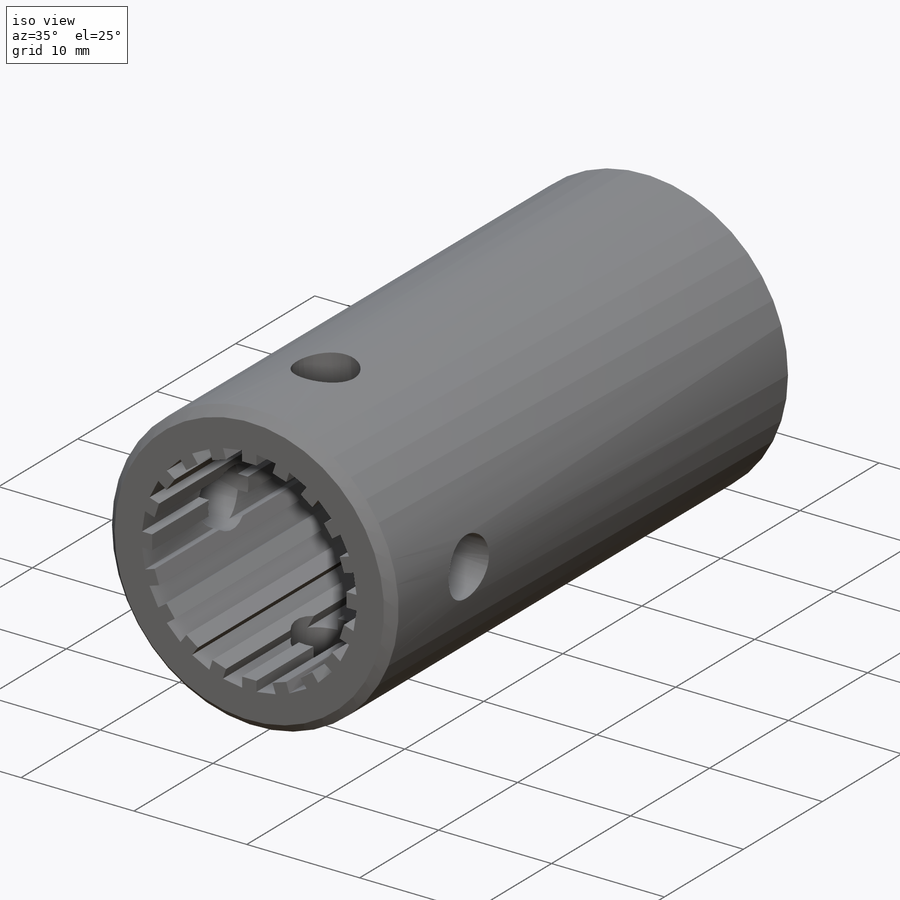
[diagram: iso view]
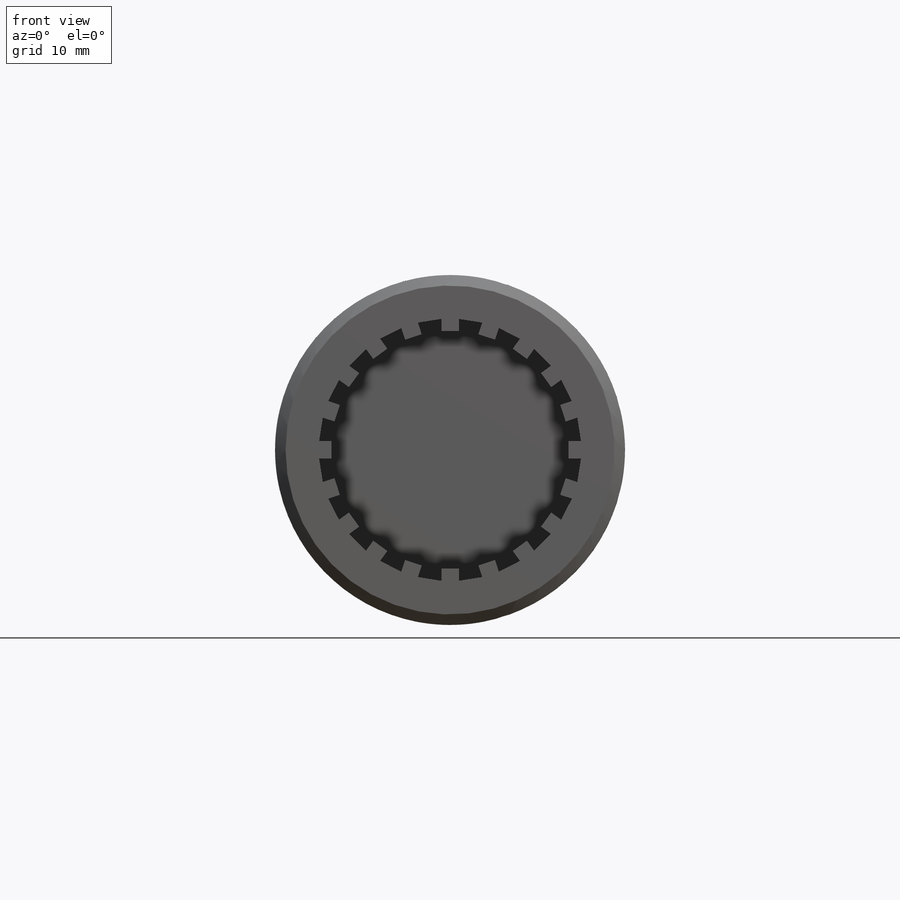
[diagram: front view]
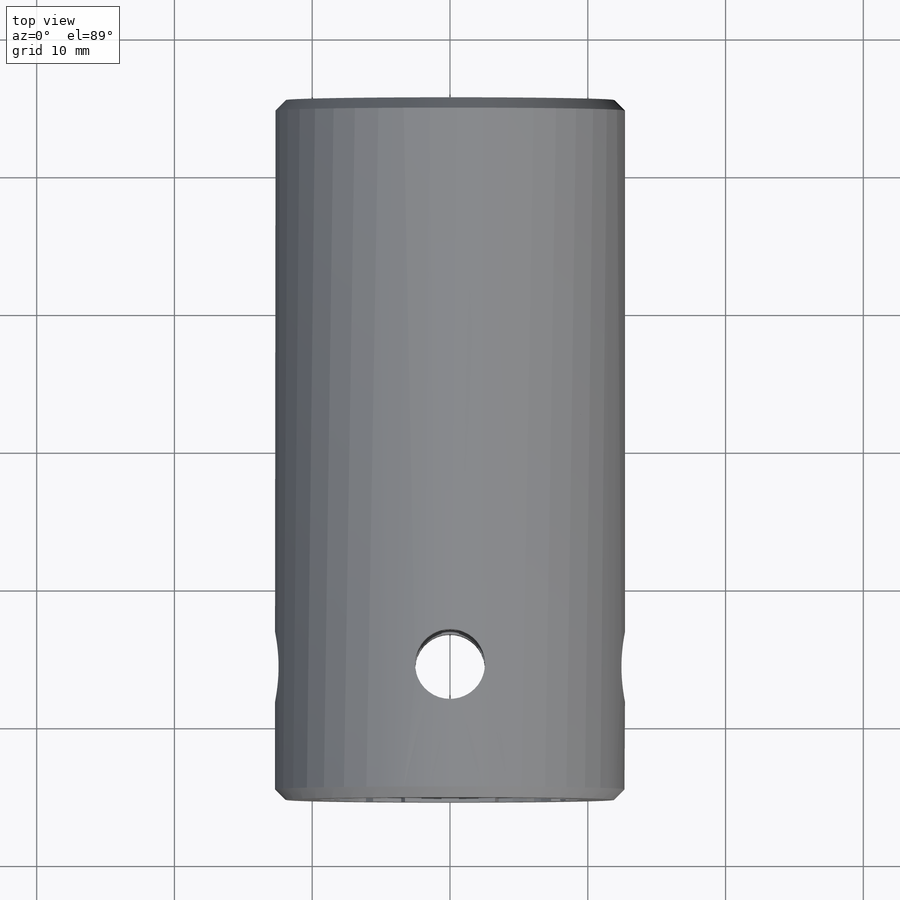
[diagram: top view]
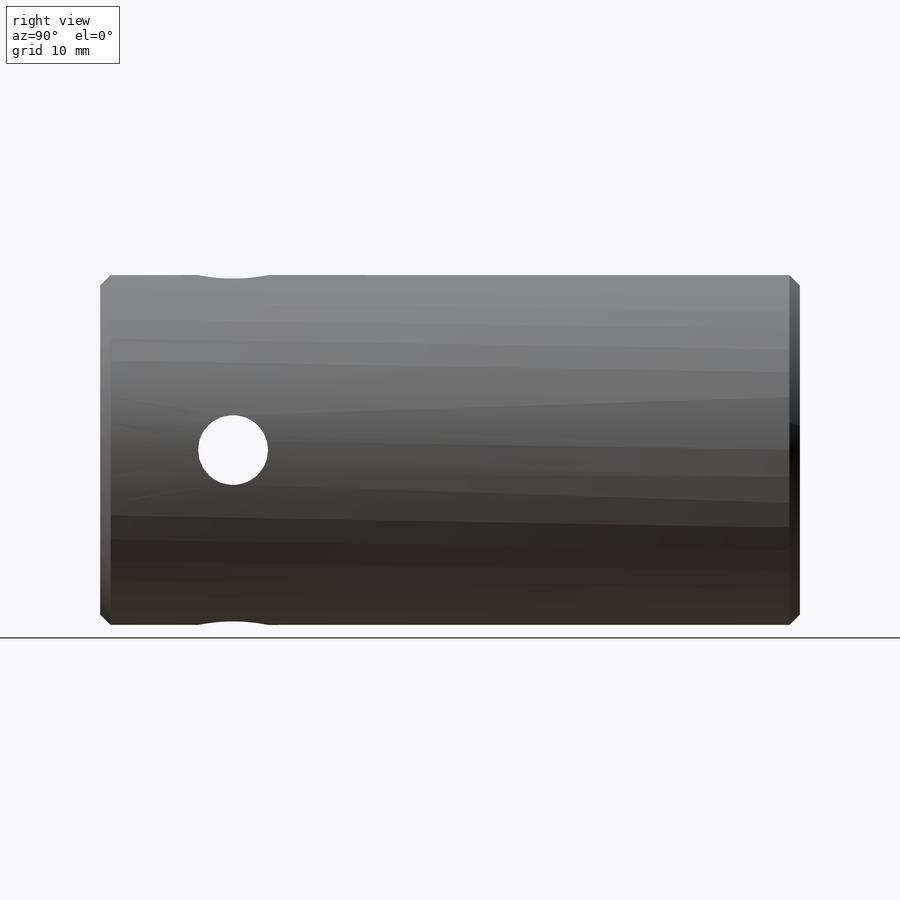
[diagram: right view]
SOLIDWORKS PART (.sldprt)
format: sldprt  version: not decoded by parser v0  size: 381,952 bytes
history: native  units: mm
features: sketch x5, cut_extrude x4, material x1, revolve x1, chamfer x1 (+11 scaffold rows collapsed)
feature tree (23):
  scaffold x11  (default folders/planes/origin — collapsed)
  material  "Plain Carbon Steel"
  sketch  "Sketch1"  dims[D1=50.8mm D2=12.7mm]
  revolve  "Revolve1"  Angle=360deg
  sketch  "Sketch2"  dims[D1=5.08mm D2=9.652mm]
  cut_extrude  "Cut-Extrude1"  Depth=34.798mm
  sketch  "Sketch3"  dims[D1=5.08mm D2=9.652mm]
  cut_extrude  "Cut-Extrude2"  Depth=34.798mm
  sketch  "Sketch4"  dims[D1=19.05mm D2=0.635mm D3=0.889mm D4=20.0]
  cut_extrude  "Cut-Extrude3"  Depth=21.59mm
  sketch  "Sketch5"  dims[D1=19.05mm]
  cut_extrude  "Cut-Extrude4"  Depth=26.67mm
  chamfer  "Chamfer1"  Distance=0.762mm Angle=45deg
decode coverage: 11 of 11 modeling features carry decoded parameters
note: suppression state not decoded; provenance and decode notes live in map.json
